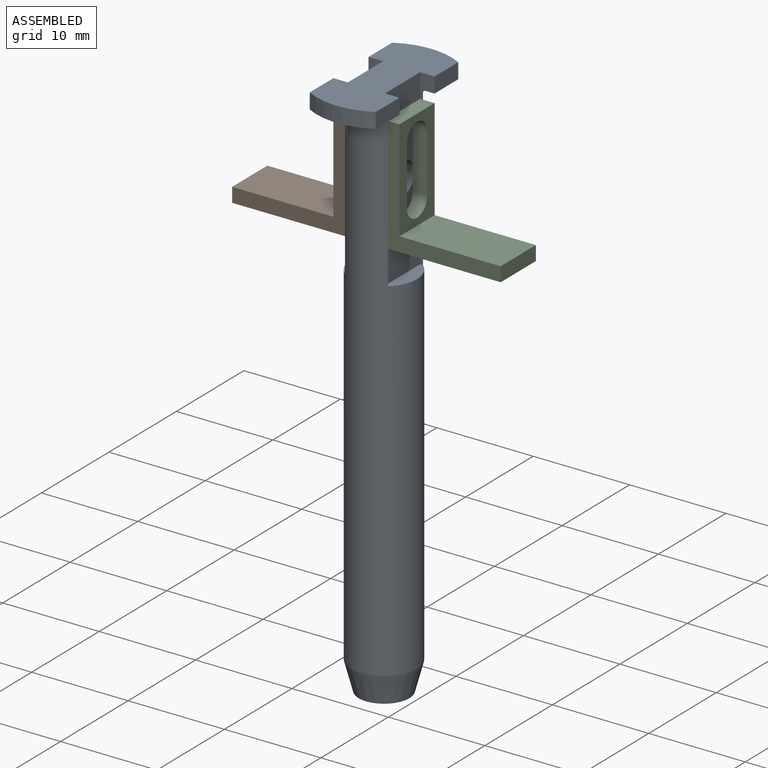
[diagram: assembled view]
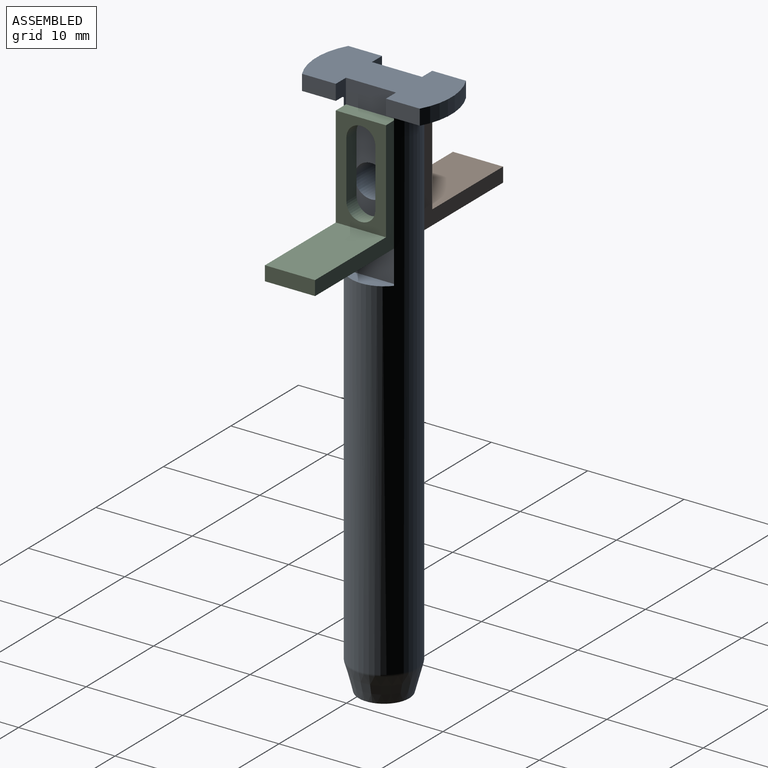
[diagram: assembled view, second angle]
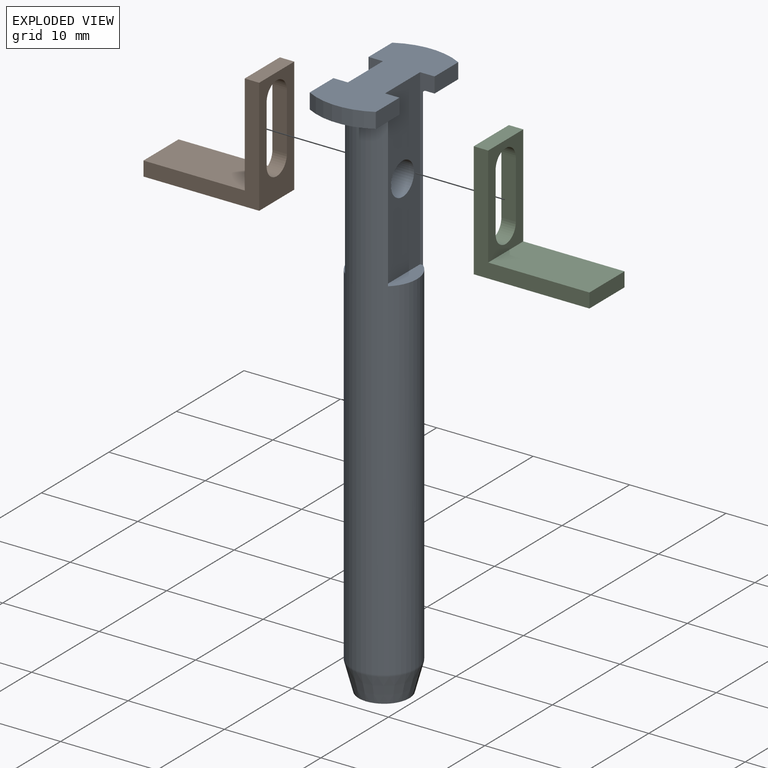
[diagram: exploded view]
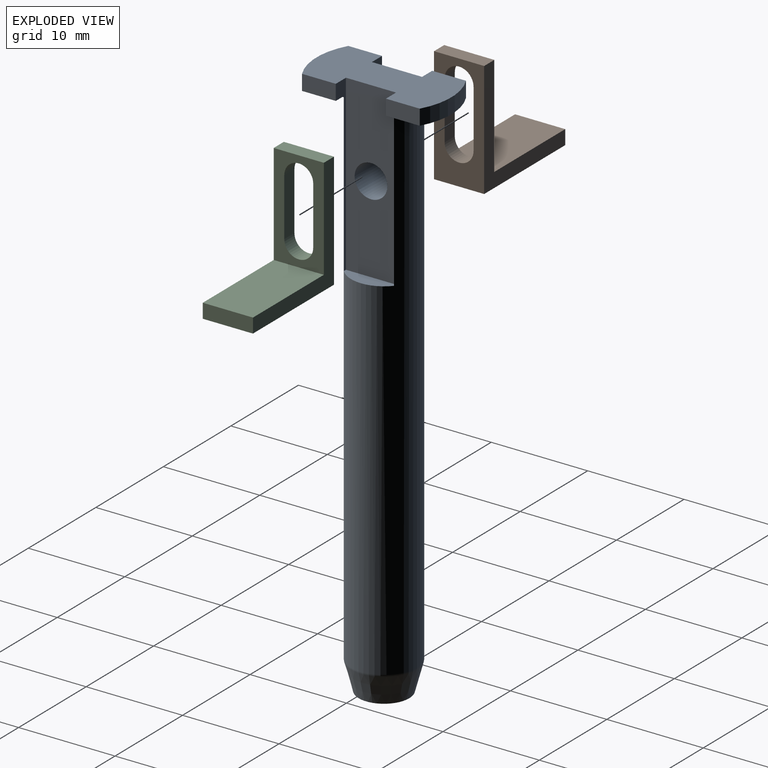
[diagram: exploded view, second angle]
ASSEMBLY  parts=3 mates=2
PART A: 24 faces, bbox 14x7.4x57.5 mm
  f0: torus R=3.62mm, axis (0,0,-1), area 1.6mm2, adj f1,f3,f17,f21
  f1: plane 6.85x4.4mm, normal (0,0,-1), area 24.6mm2, adj f0,f7,f8,f13,f17,f21
  f2: plane 14x6.85mm, normal (0,0,1), area 76.3mm2, adj f6,f7,f8,f11,f13,f14,f16,f17
  f3: cylinder r=3.43mm len=52.63mm, axis (0,0,-1), area 941.2mm2, adj f0,f4,f10,f15,f16,f17,f19,f20
  f4: torus R=3.62mm, axis (0,0,-1), area 1.6mm2, adj f3,f5,f16,f20
  f5: plane 6.85x4.4mm, normal (0,0,-1), area 24.6mm2, adj f4,f6,f11,f14,f16,f20
  f6: plane 3.51x1.6mm, normal (0,-1,0), area 5.6mm2, adj f2,f5,f11,f16
  f7: plane 3.51x1.6mm, normal (0,1,0), area 5.6mm2, adj f1,f2,f8,f21
  f8: cylinder r=7mm len=6.85mm, axis (0,0,-1), area 11.5mm2, adj f1,f2,f7,f13
  f9: cone r=3.4mm half-angle=15deg, axis (0,0,1), area 56.2mm2, adj f10,f12
  f10: torus R=2.62mm, axis (0,0,-1), area 4.5mm2, adj f3,f9
  f11: cylinder r=7mm len=6.85mm, axis (0,0,-1), area 11.5mm2, adj f2,f5,f6,f14
  f12: plane 5.26x5.26mm, normal (0,0,-1), area 21.7mm2, adj f9
  f13: plane 3.51x1.6mm, normal (0,-1,0), area 5.6mm2, adj f1,f2,f8,f17
  f14: plane 3.51x1.6mm, normal (0,1,0), area 5.6mm2, adj f2,f5,f11,f20
  f15: plane 5.2x1.5mm, normal (0,0,1), area 5.9mm2, adj f3,f16,f17,f18
  f16: plane 18x1.5mm, normal (-1,0,0), area 7.4mm2, adj f2,f3,f4,f5,f6,f15,f18
  f17: plane 18x1.5mm, normal (1,0,0), area 7.4mm2, adj f0,f1,f2,f3,f13,f15,f18
  f18: plane 18x5.2mm, normal (0,-1,0), area 84.5mm2, adj f2,f15,f16,f17,f23
  f19: plane 5.2x1.5mm, normal (0,0,1), area 5.9mm2, adj f3,f20,f21,f22
  f20: plane 18x1.5mm, normal (-1,0,0), area 7.4mm2, adj f2,f3,f4,f5,f14,f19,f22
  f21: plane 18x1.5mm, normal (1,0,0), area 7.4mm2, adj f0,f1,f2,f3,f7,f19,f22
  f22: plane 18x5.2mm, normal (0,1,0), area 84.5mm2, adj f2,f19,f20,f21,f23
  f23: cylinder r=1.7mm len=3.85mm, axis (0,-1,0), area 41.1mm2, adj f18,f22
PART B: 12 faces, bbox 12x5.2x12 mm
  f0: plane 10.5x5.2mm, normal (1,0,0), area 29.5mm2, adj f2,f5,f6,f7,f8,f9,f10,f11
  f1: plane 12x5.2mm, normal (-1,0,0), area 37.3mm2, adj f2,f3,f6,f7,f8,f9,f10,f11
  f2: plane 5.2x1.5mm, normal (0,0,1), area 7.8mm2, adj f0,f1,f6,f7
  f3: plane 12x5.2mm, normal (0,0,-1), area 62.4mm2, adj f1,f4,f6,f7
  f4: plane 5.2x1.5mm, normal (1,0,0), area 7.8mm2, adj f3,f5,f6,f7
  f5: plane 10.5x5.2mm, normal (0,0,1), area 54.6mm2, adj f0,f4,f6,f7
  f6: plane 12x12mm, normal (0,1,0), area 33.7mm2, adj f0,f1,f2,f3,f4,f5
  f7: plane 12x12mm, normal (0,-1,0), area 33.7mm2, adj f0,f1,f2,f3,f4,f5
  f8: cylinder r=1.5mm len=3mm, axis (1,0,0), area 7.1mm2, adj f0,f1,f9,f11
  f9: plane 6x1.5mm, normal (0,-1,0), area 9mm2, adj f0,f1,f8,f10
  f10: cylinder r=1.5mm len=3mm, axis (1,0,0), area 7.1mm2, adj f0,f1,f9,f11
  f11: plane 6x1.5mm, normal (0,1,0), area 9mm2, adj f0,f1,f8,f10
PART C: same geometry as B
PLACE A rot(axis=(0,0,1),90deg) t=(-2.14,2.4,-3.15)mm
PLACE B rot(axis=(0,0,1),180deg) t=(-4.06,5,-5.64)mm
PLACE C t=(-0.21,-0.2,-5.64)mm
MATE planar B.f1 <-> A.f23  axis (1,0,0) through (-4.06,2.4,-12.15)mm
MATE planar A.f23 <-> C.f1  axis (1,0,0) through (-0.21,2.4,-12.15)mm
